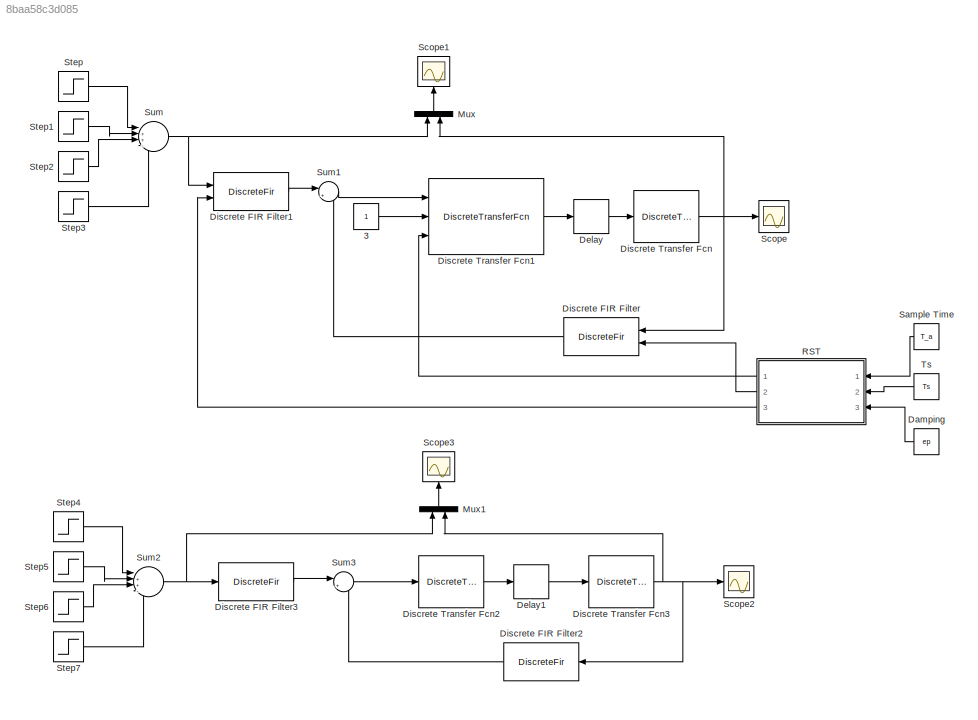
MODEL slx_8baa58c3d085
KIND model
CONFIG AbsTol = auto
CONFIG EnableMultiTasking = off
CONFIG FixedStep = auto
CONFIG MaxStep = auto
CONFIG MinStep = auto
CONFIG RelTol = 1e-3
CONFIG SampleTimeConstraint = Unconstrained
CONFIG Solver = ode45
CONFIG SolverName = ode45
CONFIG StartTime = 0.0
CONFIG StopTime = 50
BLOCK [Constant] 3
BLOCK [Constant] Damping
  Value = ep
BLOCK [Delay] Delay
  DelayLength = 1
  InitialCondition = 0
  InputPortMap = u0
  Ports = [1, 1]
  SampleTime = 0.1
BLOCK [Delay] Delay1
  DelayLength = 1
  InitialCondition = 0
  InputPortMap = u0
  Ports = [1, 1]
  SampleTime = 0.1
BLOCK [DiscreteFir] Discrete FIR Filter
  CoefSource = Input port
  InputPortMap = u0,u1
  OutputPortMap = o0
  Ports = [2, 1]
  SampleTime = 0.1
BLOCK [DiscreteFir] Discrete FIR Filter1
  CoefSource = Input port
  InputPortMap = u0,u1
  OutputPortMap = o0
  Ports = [2, 1]
  SampleTime = 0.1
BLOCK [DiscreteFir] Discrete FIR Filter2
  Coefficients = S
  InputPortMap = u0
  OutputPortMap = o0
  Ports = [1, 1]
  SampleTime = 0.1
BLOCK [DiscreteFir] Discrete FIR Filter3
  Coefficients = T
  InputPortMap = u0
  OutputPortMap = o0
  Ports = [1, 1]
  SampleTime = 0.1
BLOCK [DiscreteTransferFcn] Discrete Transfer Fcn
  Denominator = A
  InputPortMap = u0
  Numerator = B
  Ports = [1, 1]
  SampleTime = 0.1
BLOCK [DiscreteTransferFcn] Discrete Transfer Fcn1
  Denominator = A
  DenominatorSource = Input port
  InputPortMap = u0,p1,p3
  Numerator = B
  NumeratorSource = Input port
  Ports = [3, 1]
  SampleTime = 0.1
  a0EqualsOne = on
BLOCK [DiscreteTransferFcn] Discrete Transfer Fcn2
  Denominator = R
  InputPortMap = u0
  Numerator = 1
  Ports = [1, 1]
  SampleTime = 0.1
BLOCK [DiscreteTransferFcn] Discrete Transfer Fcn3
  Denominator = A
  InputPortMap = u0
  Numerator = B
  Ports = [1, 1]
  SampleTime = 0.1
BLOCK [Mux] Mux
  DisplayOption = bar
  Inputs = 2
  Ports = [2, 1]
BLOCK [Mux] Mux1
  DisplayOption = bar
  Inputs = 2
  Ports = [2, 1]
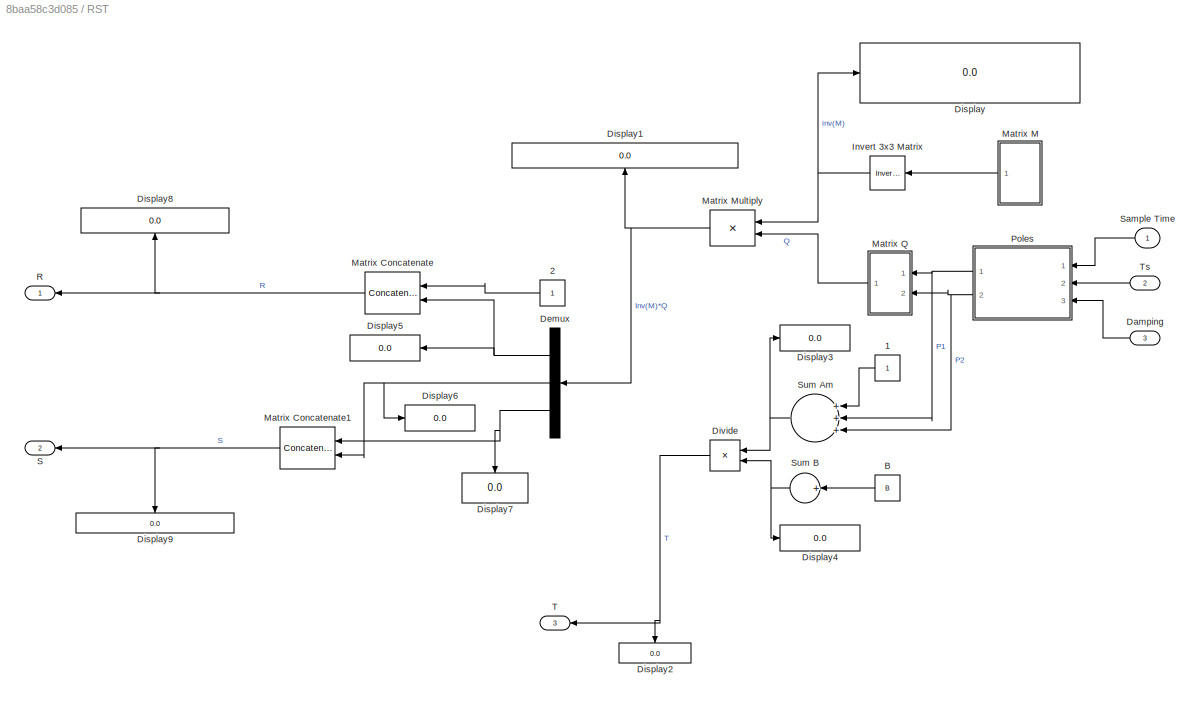
BLOCK [SubSystem] RST
  Ports = [3, 3]
  RequestExecContextInheritance = off
BLOCK [Constant] RST/1
BLOCK [Constant] RST/2
BLOCK [Constant] RST/B
  Value = B
BLOCK [Inport] RST/Damping
  IconDisplay = Port number
  Port = 3
BLOCK [Demux] RST/Demux
  DisplayOption = bar
  Outputs = 3
  Ports = [1, 3]
BLOCK [Display] RST/Display
  Decimation = 1
  Ports = [1]
BLOCK [Display] RST/Display1
  Decimation = 1
  Ports = [1]
BLOCK [Display] RST/Display2
  Decimation = 1
  Ports = [1]
BLOCK [Display] RST/Display3
  Decimation = 1
  Ports = [1]
BLOCK [Display] RST/Display4
  Decimation = 1
  Ports = [1]
BLOCK [Display] RST/Display5
  Decimation = 1
  Ports = [1]
BLOCK [Display] RST/Display6
  Decimation = 1
  Ports = [1]
BLOCK [Display] RST/Display7
  Decimation = 1
  Ports = [1]
BLOCK [Display] RST/Display8
  Decimation = 1
  Ports = [1]
BLOCK [Display] RST/Display9
  Decimation = 1
  Ports = [1]
BLOCK [Product] RST/Divide
  InputSameDT = off
  Inputs = */
  OutDataTypeStr = Inherit: Inherit via internal rule
  Ports = [2, 1]
  RndMeth = Floor
  SaturateOnIntegerOverflow = off
BLOCK [Reference] RST/Invert 3x3 Matrix  REF=aerolibutil/Invert 
3x3 Matrix
  Ports = [1, 1]
  SourceBlock = aerolibutil/Invert \n3x3 Matrix
  SourceProductBaseCode = AE
  SourceProductName = Aerospace Blockset
  SourceType = Invert 3x3 Matrix
BLOCK [Concatenate] RST/Matrix Concatenate
  ConcatenateDimension = 2
  Mode = Multidimensional array
  Ports = [2, 1]
BLOCK [Concatenate] RST/Matrix Concatenate1
  ConcatenateDimension = 2
  Mode = Multidimensional array
  Ports = [2, 1]
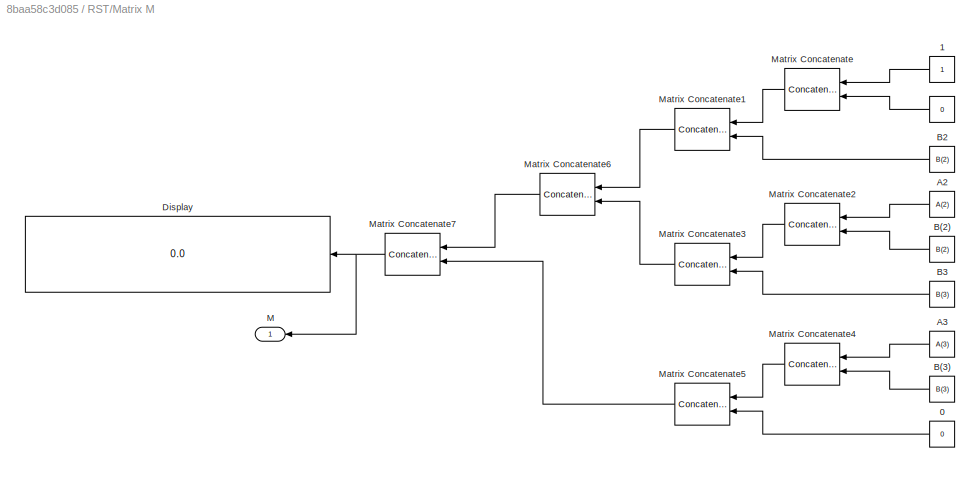
BLOCK [SubSystem] RST/Matrix M
  Ports = [0, 1]
  RequestExecContextInheritance = off
BLOCK [Constant] RST/Matrix M/ 
  Value = 0
BLOCK [Constant] RST/Matrix M/ 0
  Value = 0
BLOCK [Constant] RST/Matrix M/ B(2)
  Value = B(2)
BLOCK [Constant] RST/Matrix M/ B(3)
  Value = B(3)
BLOCK [Constant] RST/Matrix M/ B2
  Value = B(2)
BLOCK [Constant] RST/Matrix M/ B3
  Value = B(3)
BLOCK [Constant] RST/Matrix M/1
BLOCK [Constant] RST/Matrix M/A2
  Value = A(2)
BLOCK [Constant] RST/Matrix M/A3
  Value = A(3)
BLOCK [Display] RST/Matrix M/Display
  Decimation = 1
  Ports = [1]
BLOCK [Outport] RST/Matrix M/M
  IconDisplay = Port number
BLOCK [Concatenate] RST/Matrix M/Matrix Concatenate
  ConcatenateDimension = 2
  Mode = Multidimensional array
  Ports = [2, 1]
BLOCK [Concatenate] RST/Matrix M/Matrix Concatenate1
  ConcatenateDimension = 2
  Mode = Multidimensional array
  Ports = [2, 1]
BLOCK [Concatenate] RST/Matrix M/Matrix Concatenate2
  ConcatenateDimension = 2
  Mode = Multidimensional array
  Ports = [2, 1]
BLOCK [Concatenate] RST/Matrix M/Matrix Concatenate3
  ConcatenateDimension = 2
  Mode = Multidimensional array
  Ports = [2, 1]
BLOCK [Concatenate] RST/Matrix M/Matrix Concatenate4
  ConcatenateDimension = 2
  Mode = Multidimensional array
  Ports = [2, 1]
BLOCK [Concatenate] RST/Matrix M/Matrix Concatenate5
  ConcatenateDimension = 2
  Mode = Multidimensional array
  Ports = [2, 1]
BLOCK [Concatenate] RST/Matrix M/Matrix Concatenate6
  Mode = Multidimensional array
  Ports = [2, 1]
BLOCK [Concatenate] RST/Matrix M/Matrix Concatenate7
  Mode = Multidimensional array
  Ports = [2, 1]
BLOCK [Product] RST/Matrix Multiply
  InputSameDT = off
  Multiplication = Matrix(*)
  OutDataTypeStr = Inherit: Inherit via internal rule
  Ports = [2, 1]
  RndMeth = Floor
  SaturateOnIntegerOverflow = off
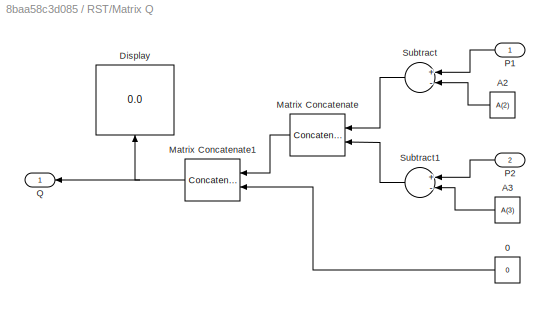
BLOCK [SubSystem] RST/Matrix Q
  Ports = [2, 1]
  RequestExecContextInheritance = off
BLOCK [Constant] RST/Matrix Q/0
  Value = 0
BLOCK [Constant] RST/Matrix Q/A2
  Value = A(2)
BLOCK [Constant] RST/Matrix Q/A3
  Value = A(3)
BLOCK [Display] RST/Matrix Q/Display
  Decimation = 1
  Ports = [1]
BLOCK [Concatenate] RST/Matrix Q/Matrix Concatenate
  Mode = Multidimensional array
  Ports = [2, 1]
BLOCK [Concatenate] RST/Matrix Q/Matrix Concatenate1
  Mode = Multidimensional array
  Ports = [2, 1]
BLOCK [Inport] RST/Matrix Q/P1
  IconDisplay = Port number
BLOCK [Inport] RST/Matrix Q/P2
  IconDisplay = Port number
  Port = 2
BLOCK [Outport] RST/Matrix Q/Q
  IconDisplay = Port number
BLOCK [Sum] RST/Matrix Q/Subtract
  InputSameDT = off
  Inputs = +-
  OutDataTypeStr = Inherit: Inherit via internal rule
  Ports = [2, 1]
  SaturateOnIntegerOverflow = off
BLOCK [Sum] RST/Matrix Q/Subtract1
  InputSameDT = off
  Inputs = +-
  OutDataTypeStr = Inherit: Inherit via internal rule
  Ports = [2, 1]
  SaturateOnIntegerOverflow = off
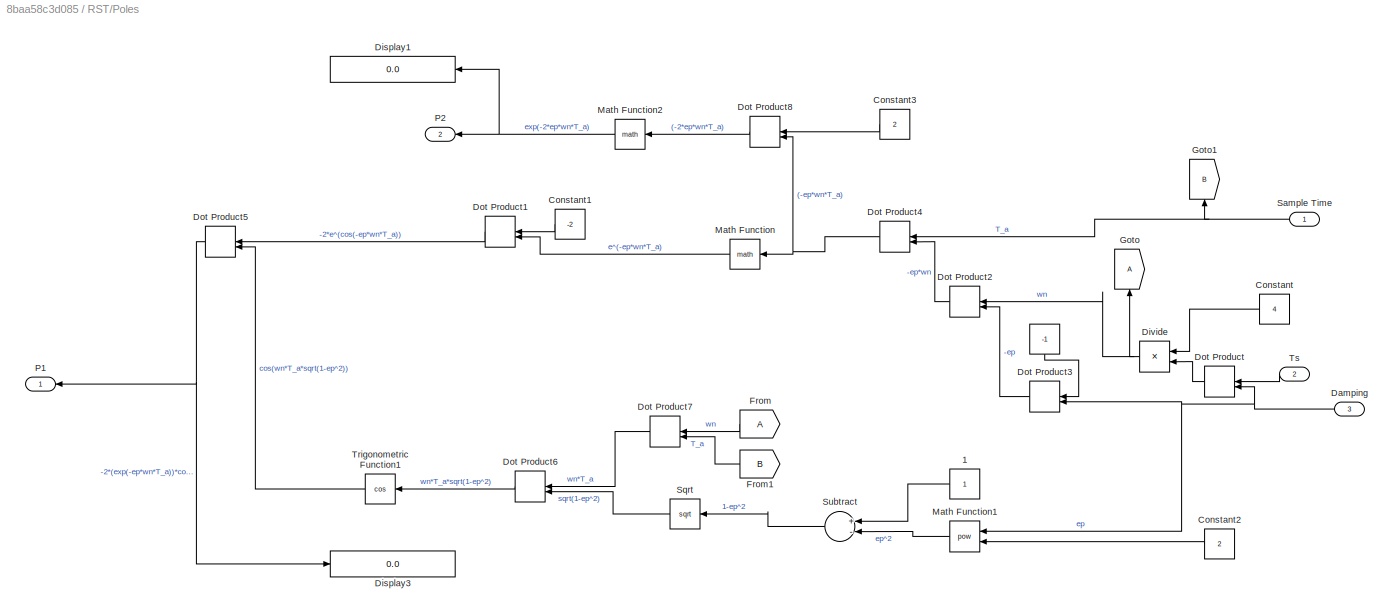
BLOCK [SubSystem] RST/Poles
  Ports = [3, 2]
  RequestExecContextInheritance = off
BLOCK [Constant] RST/Poles/ 
  Value = -1
BLOCK [Constant] RST/Poles/1
BLOCK [Constant] RST/Poles/Constant
  Value = 4
BLOCK [Constant] RST/Poles/Constant1
  Value = -2
BLOCK [Constant] RST/Poles/Constant2
  Value = 2
BLOCK [Constant] RST/Poles/Constant3
  Value = 2
BLOCK [Inport] RST/Poles/Damping
  IconDisplay = Port number
  Port = 3
BLOCK [Display] RST/Poles/Display1
  Decimation = 1
  Ports = [1]
BLOCK [Display] RST/Poles/Display3
  Decimation = 1
  Ports = [1]
BLOCK [Product] RST/Poles/Divide
  InputSameDT = off
  Inputs = */
  OutDataTypeStr = Inherit: Inherit via internal rule
  Ports = [2, 1]
  RndMeth = Floor
  SaturateOnIntegerOverflow = off
BLOCK [DotProduct] RST/Poles/Dot Product
  OutDataTypeStr = Inherit: Inherit via internal rule
BLOCK [DotProduct] RST/Poles/Dot Product1
  OutDataTypeStr = Inherit: Inherit via internal rule
BLOCK [DotProduct] RST/Poles/Dot Product2
  OutDataTypeStr = Inherit: Inherit via internal rule
BLOCK [DotProduct] RST/Poles/Dot Product3
  OutDataTypeStr = Inherit: Inherit via internal rule
BLOCK [DotProduct] RST/Poles/Dot Product4
  OutDataTypeStr = Inherit: Inherit via internal rule
BLOCK [DotProduct] RST/Poles/Dot Product5
  OutDataTypeStr = Inherit: Inherit via internal rule
BLOCK [DotProduct] RST/Poles/Dot Product6
  OutDataTypeStr = Inherit: Inherit via internal rule
BLOCK [DotProduct] RST/Poles/Dot Product7
  OutDataTypeStr = Inherit: Inherit via internal rule
BLOCK [DotProduct] RST/Poles/Dot Product8
  OutDataTypeStr = Inherit: Inherit via internal rule
BLOCK [From] RST/Poles/From
BLOCK [From] RST/Poles/From1
  GotoTag = B
BLOCK [Goto] RST/Poles/Goto
BLOCK [Goto] RST/Poles/Goto1
  GotoTag = B
BLOCK [Math] RST/Poles/Math Function
  Ports = [1, 1]
BLOCK [Math] RST/Poles/Math Function1
  Operator = pow
  Ports = [2, 1]
BLOCK [Math] RST/Poles/Math Function2
  Ports = [1, 1]
BLOCK [Outport] RST/Poles/P1
  IconDisplay = Port number
BLOCK [Outport] RST/Poles/P2
  IconDisplay = Port number
  Port = 2
BLOCK [Inport] RST/Poles/Sample Time
  IconDisplay = Port number
BLOCK [Sqrt] RST/Poles/Sqrt
BLOCK [Sum] RST/Poles/Subtract
  InputSameDT = off
  Inputs = +-
  OutDataTypeStr = Inherit: Inherit via internal rule
  Ports = [2, 1]
  SaturateOnIntegerOverflow = off
BLOCK [Trigonometry] RST/Poles/Trigonometric Function1
  Operator = cos
  Ports = [1, 1]
BLOCK [Inport] RST/Poles/Ts
  IconDisplay = Port number
  Port = 2
BLOCK [Outport] RST/R
  IconDisplay = Port number
BLOCK [Outport] RST/S
  IconDisplay = Port number
  Port = 2
BLOCK [Inport] RST/Sample Time
  IconDisplay = Port number
BLOCK [Sum] RST/Sum Am
  InputSameDT = off
  Inputs = +++
  OutDataTypeStr = Inherit: Inherit via internal rule
  Ports = [3, 1]
  SaturateOnIntegerOverflow = off
BLOCK [Sum] RST/Sum B
  InputSameDT = off
  Inputs = +
  OutDataTypeStr = Inherit: Inherit via internal rule
  Ports = [1, 1]
  SaturateOnIntegerOverflow = off
BLOCK [Outport] RST/T
  IconDisplay = Port number
  Port = 3
BLOCK [Inport] RST/Ts
  IconDisplay = Port number
  Port = 2
BLOCK [Constant] Sample Time
  Value = T_a
BLOCK [Scope] Scope
  Floating = off
  NumInputPorts = 1
  Ports = [1]
  ScopeSpecificationString = Simulink.scopes.TimeScopeBlockCfg('CurrentConfiguration', extmgr.ConfigurationSet(extmgr.Configuration('Core','General UI',true,'FigureColor',[0.156862745098039 0.156862745098039 0.156862745098039]),extmgr.Configuration('Core','Source UI',true),extmgr.Configuration('Sources','WiredSimulink',true,'DataLoggingSaveFormat','StructureWithTime','DataLoggingDecimation','1','DataLoggingDecimateData',true)...<+3060ch>
BLOCK [Scope] Scope1
  Floating = off
  NumInputPorts = 1
  Ports = [1]
  ScopeSpecificationString = Simulink.scopes.TimeScopeBlockCfg('CurrentConfiguration', extmgr.ConfigurationSet(extmgr.Configuration('Core','General UI',true,'FigureColor',[0.156862745098039 0.156862745098039 0.156862745098039]),extmgr.Configuration('Core','Source UI',true),extmgr.Configuration('Sources','WiredSimulink',true,'DataLoggingVariableName','ScopeData1','DataLoggingSaveFormat','StructureWithTime','DataLoggingDecimati...<+3099ch>
BLOCK [Scope] Scope2
  Floating = off
  NumInputPorts = 1
  Ports = [1]
  ScopeSpecificationString = Simulink.scopes.TimeScopeBlockCfg('CurrentConfiguration', extmgr.ConfigurationSet(extmgr.Configuration('Core','General UI',true,'FigureColor',[0.156862745098039 0.156862745098039 0.156862745098039]),extmgr.Configuration('Core','Source UI',true),extmgr.Configuration('Sources','WiredSimulink',true,'DataLoggingVariableName','ScopeData2','DataLoggingSaveFormat','StructureWithTime','DataLoggingDecimati...<+2729ch>
BLOCK [Scope] Scope3
  Floating = off
  NumInputPorts = 1
  Ports = [1]
  ScopeSpecificationString = Simulink.scopes.TimeScopeBlockCfg('CurrentConfiguration', extmgr.ConfigurationSet(extmgr.Configuration('Core','General UI',true,'FigureColor',[0.156862745098039 0.156862745098039 0.156862745098039]),extmgr.Configuration('Core','Source UI',true),extmgr.Configuration('Sources','WiredSimulink',true,'DataLoggingVariableName','ScopeData3','DataLoggingSaveFormat','StructureWithTime','DataLoggingDecimati...<+2729ch>
BLOCK [Step] Step
  SampleTime = 0
BLOCK [Step] Step1
  After = 3
  SampleTime = 0
  Time = 10
BLOCK [Step] Step2
  After = 2
  SampleTime = 0
  Time = 20
BLOCK [Step] Step3
  SampleTime = 0
  Time = 30
BLOCK [Step] Step4
  SampleTime = 0
BLOCK [Step] Step5
  After = 3
  SampleTime = 0
  Time = 10
BLOCK [Step] Step6
  After = 2
  SampleTime = 0
  Time = 20
BLOCK [Step] Step7
  SampleTime = 0
  Time = 30
BLOCK [Sum] Sum
  IconShape = round
  InputSameDT = off
  Inputs = |++-+
  OutDataTypeStr = Inherit: Inherit via internal rule
  Ports = [4, 1]
  SaturateOnIntegerOverflow = off
BLOCK [Sum] Sum1
  IconShape = round
  InputSameDT = off
  Inputs = |+-
  OutDataTypeStr = Inherit: Inherit via internal rule
  Ports = [2, 1]
  SaturateOnIntegerOverflow = off
BLOCK [Sum] Sum2
  IconShape = round
  InputSameDT = off
  Inputs = |++-+
  OutDataTypeStr = Inherit: Inherit via internal rule
  Ports = [4, 1]
  SaturateOnIntegerOverflow = off
BLOCK [Sum] Sum3
  IconShape = round
  InputSameDT = off
  Inputs = |+-
  OutDataTypeStr = Inherit: Inherit via internal rule
  Ports = [2, 1]
  SaturateOnIntegerOverflow = off
BLOCK [Constant] Ts
  Value = Ts
LINE 3:1 -> Discrete Transfer Fcn1:2
LINE Damping:1 -> RST:3
LINE Delay1:1 -> Discrete Transfer Fcn3:1
LINE Delay:1 -> Discrete Transfer Fcn:1
LINE Discrete FIR Filter1:1 -> Sum1:1
LINE Discrete FIR Filter2:1 -> Sum3:2
LINE Discrete FIR Filter3:1 -> Sum3:1
LINE Discrete FIR Filter:1 -> Sum1:2
LINE Discrete Transfer Fcn1:1 -> Delay:1
LINE Discrete Transfer Fcn2:1 -> Delay1:1
NET Discrete Transfer Fcn3:1 -> Discrete FIR Filter2:1, Mux1:2, Scope2:1
NET Discrete Transfer Fcn:1 -> Discrete FIR Filter:1, Mux:2, Scope:1
LINE Mux1:1 -> Scope3:1
LINE Mux:1 -> Scope1:1
LINE RST/1:1 -> RST/Sum Am:1
LINE RST/2:1 -> RST/Matrix Concatenate:1
LINE RST/B:1 -> RST/Sum B:1
LINE RST/Damping:1 -> RST/Poles:3
NET RST/Demux:1 -> RST/Display5:1, RST/Matrix Concatenate:2
NET RST/Demux:2 -> RST/Display6:1, RST/Matrix Concatenate1:2
NET RST/Demux:3 -> RST/Display7:1, RST/Matrix Concatenate1:1
NET RST/Divide:1 -> RST/Display2:1, RST/T:1
NET RST/Invert 3x3 Matrix:1 -> RST/Display:1, RST/Matrix Multiply:1
NET RST/Matrix Concatenate1:1 -> RST/Display9:1, RST/S:1
NET RST/Matrix Concatenate:1 -> RST/Display8:1, RST/R:1
LINE RST/Matrix M/ 0:1 -> RST/Matrix M/Matrix Concatenate5:2
LINE RST/Matrix M/ :1 -> RST/Matrix M/Matrix Concatenate:2
LINE RST/Matrix M/ B(2):1 -> RST/Matrix M/Matrix Concatenate2:2
LINE RST/Matrix M/ B(3):1 -> RST/Matrix M/Matrix Concatenate4:2
LINE RST/Matrix M/ B2:1 -> RST/Matrix M/Matrix Concatenate1:2
LINE RST/Matrix M/ B3:1 -> RST/Matrix M/Matrix Concatenate3:2
LINE RST/Matrix M/1:1 -> RST/Matrix M/Matrix Concatenate:1
LINE RST/Matrix M/A2:1 -> RST/Matrix M/Matrix Concatenate2:1
LINE RST/Matrix M/A3:1 -> RST/Matrix M/Matrix Concatenate4:1
LINE RST/Matrix M/Matrix Concatenate1:1 -> RST/Matrix M/Matrix Concatenate6:1
LINE RST/Matrix M/Matrix Concatenate2:1 -> RST/Matrix M/Matrix Concatenate3:1
LINE RST/Matrix M/Matrix Concatenate3:1 -> RST/Matrix M/Matrix Concatenate6:2
LINE RST/Matrix M/Matrix Concatenate4:1 -> RST/Matrix M/Matrix Concatenate5:1
LINE RST/Matrix M/Matrix Concatenate5:1 -> RST/Matrix M/Matrix Concatenate7:2
LINE RST/Matrix M/Matrix Concatenate6:1 -> RST/Matrix M/Matrix Concatenate7:1
NET RST/Matrix M/Matrix Concatenate7:1 -> RST/Matrix M/Display:1, RST/Matrix M/M:1
LINE RST/Matrix M/Matrix Concatenate:1 -> RST/Matrix M/Matrix Concatenate1:1
LINE RST/Matrix M:1 -> RST/Invert 3x3 Matrix:1
NET RST/Matrix Multiply:1 -> RST/Demux:1, RST/Display1:1
LINE RST/Matrix Q/0:1 -> RST/Matrix Q/Matrix Concatenate1:2
LINE RST/Matrix Q/A2:1 -> RST/Matrix Q/Subtract:2
LINE RST/Matrix Q/A3:1 -> RST/Matrix Q/Subtract1:2
NET RST/Matrix Q/Matrix Concatenate1:1 -> RST/Matrix Q/Display:1, RST/Matrix Q/Q:1
LINE RST/Matrix Q/Matrix Concatenate:1 -> RST/Matrix Q/Matrix Concatenate1:1
LINE RST/Matrix Q/P1:1 -> RST/Matrix Q/Subtract:1
LINE RST/Matrix Q/P2:1 -> RST/Matrix Q/Subtract1:1
LINE RST/Matrix Q/Subtract1:1 -> RST/Matrix Q/Matrix Concatenate:2
LINE RST/Matrix Q/Subtract:1 -> RST/Matrix Q/Matrix Concatenate:1
LINE RST/Matrix Q:1 -> RST/Matrix Multiply:2
LINE RST/Poles/ :1 -> RST/Poles/Dot Product3:1
LINE RST/Poles/1:1 -> RST/Poles/Subtract:1
LINE RST/Poles/Constant1:1 -> RST/Poles/Dot Product1:1
LINE RST/Poles/Constant2:1 -> RST/Poles/Math Function1:2
LINE RST/Poles/Constant3:1 -> RST/Poles/Dot Product8:1
LINE RST/Poles/Constant:1 -> RST/Poles/Divide:1
NET RST/Poles/Damping:1 -> RST/Poles/Dot Product3:2, RST/Poles/Dot Product:2, RST/Poles/Math Function1:1
NET RST/Poles/Divide:1 -> RST/Poles/Dot Product2:1, RST/Poles/Goto:1
LINE RST/Poles/Dot Product1:1 -> RST/Poles/Dot Product5:1
LINE RST/Poles/Dot Product2:1 -> RST/Poles/Dot Product4:2
LINE RST/Poles/Dot Product3:1 -> RST/Poles/Dot Product2:2
NET RST/Poles/Dot Product4:1 -> RST/Poles/Dot Product8:2, RST/Poles/Math Function:1
NET RST/Poles/Dot Product5:1 -> RST/Poles/Display3:1, RST/Poles/P1:1
LINE RST/Poles/Dot Product6:1 -> RST/Poles/Trigonometric Function1:1
LINE RST/Poles/Dot Product7:1 -> RST/Poles/Dot Product6:1
LINE RST/Poles/Dot Product8:1 -> RST/Poles/Math Function2:1
LINE RST/Poles/Dot Product:1 -> RST/Poles/Divide:2
LINE RST/Poles/From1:1 -> RST/Poles/Dot Product7:2
LINE RST/Poles/From:1 -> RST/Poles/Dot Product7:1
LINE RST/Poles/Math Function1:1 -> RST/Poles/Subtract:2
NET RST/Poles/Math Function2:1 -> RST/Poles/Display1:1, RST/Poles/P2:1
LINE RST/Poles/Math Function:1 -> RST/Poles/Dot Product1:2
NET RST/Poles/Sample Time:1 -> RST/Poles/Dot Product4:1, RST/Poles/Goto1:1
LINE RST/Poles/Sqrt:1 -> RST/Poles/Dot Product6:2
LINE RST/Poles/Subtract:1 -> RST/Poles/Sqrt:1
LINE RST/Poles/Trigonometric Function1:1 -> RST/Poles/Dot Product5:2
LINE RST/Poles/Ts:1 -> RST/Poles/Dot Product:1
NET RST/Poles:1 -> RST/Matrix Q:1, RST/Sum Am:2
NET RST/Poles:2 -> RST/Matrix Q:2, RST/Sum Am:3
LINE RST/Sample Time:1 -> RST/Poles:1
NET RST/Sum Am:1 -> RST/Display3:1, RST/Divide:1
NET RST/Sum B:1 -> RST/Display4:1, RST/Divide:2
LINE RST/Ts:1 -> RST/Poles:2
LINE RST:1 -> Discrete Transfer Fcn1:3
LINE RST:2 -> Discrete FIR Filter:2
LINE RST:3 -> Discrete FIR Filter1:2
LINE Sample Time:1 -> RST:1
LINE Step1:1 -> Sum:2
LINE Step2:1 -> Sum:3
LINE Step3:1 -> Sum:4
LINE Step4:1 -> Sum2:1
LINE Step5:1 -> Sum2:2
LINE Step6:1 -> Sum2:3
LINE Step7:1 -> Sum2:4
LINE Step:1 -> Sum:1
LINE Sum1:1 -> Discrete Transfer Fcn1:1
NET Sum2:1 -> Discrete FIR Filter3:1, Mux1:1
LINE Sum3:1 -> Discrete Transfer Fcn2:1
NET Sum:1 -> Discrete FIR Filter1:1, Mux:1
LINE Ts:1 -> RST:2
note: NET lines group one-source signal fan-out (src -> all destinations, sorted); 1:1 wires keep LINE
